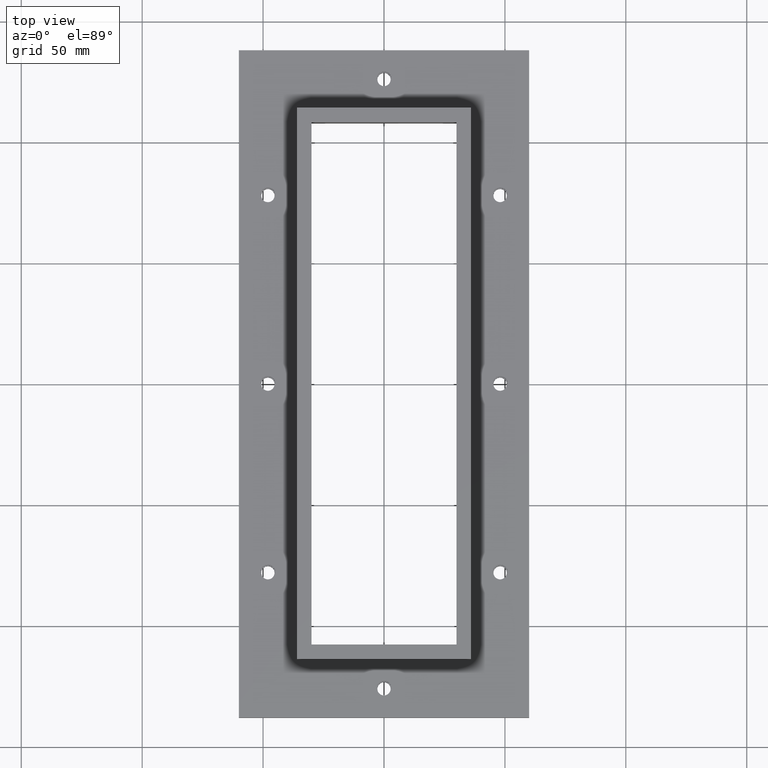
[diagram: clean part render]
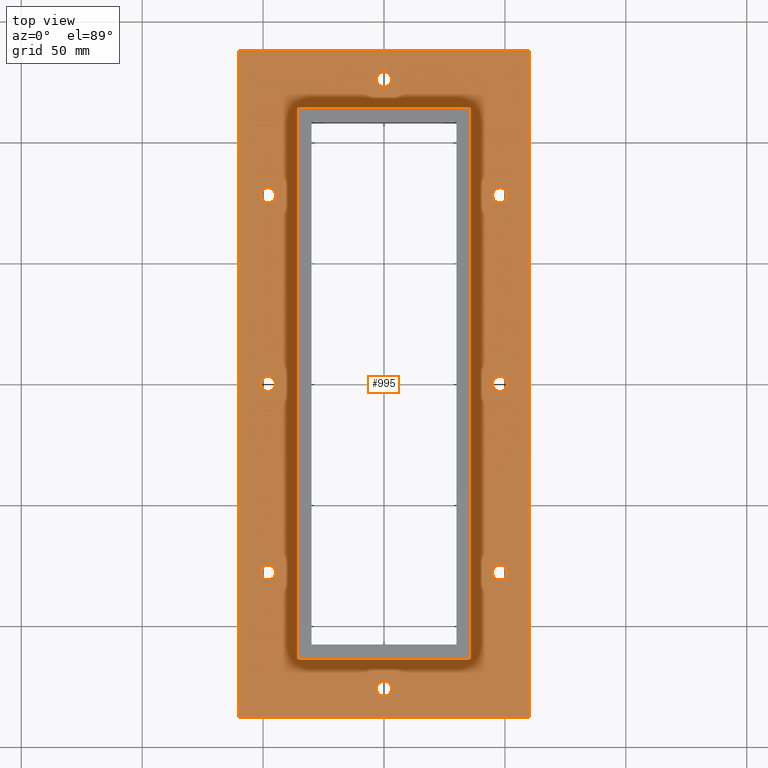
[diagram: same view with one face highlighted and labeled with its STEP entity id]
A machine part, top view. The second image highlights one B-rep face of the part: STEP entity #995.
In plain terms, the highlighted planar face has unit normal (0, 0, 1).
Its self-contained STEP definition (entity closure, byte-faithful):
#50=FACE_BOUND('',#191,.T.);
#51=FACE_BOUND('',#192,.T.);
#52=FACE_BOUND('',#193,.T.);
#53=FACE_BOUND('',#194,.T.);
#54=FACE_BOUND('',#195,.T.);
#55=FACE_BOUND('',#196,.T.);
#56=FACE_BOUND('',#197,.T.);
#57=FACE_BOUND('',#198,.T.);
#58=FACE_BOUND('',#199,.T.);
#91=PLANE('',#1082);
#129=FACE_OUTER_BOUND('',#190,.T.);
#190=EDGE_LOOP('',(#797,#798,#799,#800));
#191=EDGE_LOOP('',(#801));
#192=EDGE_LOOP('',(#802));
#193=EDGE_LOOP('',(#803));
#194=EDGE_LOOP('',(#804));
#195=EDGE_LOOP('',(#805));
#196=EDGE_LOOP('',(#806));
#197=EDGE_LOOP('',(#807));
#198=EDGE_LOOP('',(#808));
#199=EDGE_LOOP('',(#809,#810,#811,#812));
#264=LINE('',#1483,#356);
#266=LINE('',#1489,#358);
#277=LINE('',#1510,#369);
#279=LINE('',#1515,#371);
#296=LINE('',#1545,#388);
#297=LINE('',#1547,#389);
#298=LINE('',#1549,#390);
#299=LINE('',#1550,#391);
#356=VECTOR('',#1209,10.);
#358=VECTOR('',#1213,10.);
#369=VECTOR('',#1230,10.);
#371=VECTOR('',#1234,10.);
#388=VECTOR('',#1263,10.);
#389=VECTOR('',#1266,10.);
#390=VECTOR('',#1267,10.);
#391=VECTOR('',#1268,10.);
#429=CIRCLE('',#1045,3.15);
#431=CIRCLE('',#1048,3.15);
#433=CIRCLE('',#1051,3.15);
#435=CIRCLE('',#1054,3.15);
#437=CIRCLE('',#1057,3.15);
#439=CIRCLE('',#1060,3.15);
#441=CIRCLE('',#1063,3.15);
#443=CIRCLE('',#1066,3.15);
#469=VERTEX_POINT('',#1410);
#471=VERTEX_POINT('',#1416);
#473=VERTEX_POINT('',#1422);
#475=VERTEX_POINT('',#1428);
#477=VERTEX_POINT('',#1434);
#479=VERTEX_POINT('',#1440);
#481=VERTEX_POINT('',#1446);
#483=VERTEX_POINT('',#1452);
#493=VERTEX_POINT('',#1476);
#496=VERTEX_POINT('',#1481);
#498=VERTEX_POINT('',#1486);
#499=VERTEX_POINT('',#1488);
#505=VERTEX_POINT('',#1506);
#508=VERTEX_POINT('',#1513);
#515=VERTEX_POINT('',#1543);
#516=VERTEX_POINT('',#1548);
#557=EDGE_CURVE('',#469,#469,#429,.T.);
#560=EDGE_CURVE('',#471,#471,#431,.T.);
#563=EDGE_CURVE('',#473,#473,#433,.T.);
#566=EDGE_CURVE('',#475,#475,#435,.T.);
#569=EDGE_CURVE('',#477,#477,#437,.T.);
#572=EDGE_CURVE('',#479,#479,#439,.T.);
#575=EDGE_CURVE('',#481,#481,#441,.T.);
#578=EDGE_CURVE('',#483,#483,#443,.T.);
#592=EDGE_CURVE('',#493,#496,#264,.T.);
#594=EDGE_CURVE('',#498,#499,#266,.T.);
#605=EDGE_CURVE('',#505,#493,#277,.T.);
#607=EDGE_CURVE('',#508,#498,#279,.T.);
#624=EDGE_CURVE('',#515,#505,#296,.T.);
#625=EDGE_CURVE('',#515,#496,#297,.T.);
#626=EDGE_CURVE('',#499,#516,#298,.T.);
#627=EDGE_CURVE('',#516,#508,#299,.T.);
#797=ORIENTED_EDGE('',*,*,#624,.T.);
#798=ORIENTED_EDGE('',*,*,#605,.T.);
#799=ORIENTED_EDGE('',*,*,#592,.T.);
#800=ORIENTED_EDGE('',*,*,#625,.F.);
#801=ORIENTED_EDGE('',*,*,#557,.T.);
#802=ORIENTED_EDGE('',*,*,#560,.T.);
#803=ORIENTED_EDGE('',*,*,#563,.T.);
#804=ORIENTED_EDGE('',*,*,#566,.T.);
#805=ORIENTED_EDGE('',*,*,#569,.T.);
#806=ORIENTED_EDGE('',*,*,#572,.T.);
#807=ORIENTED_EDGE('',*,*,#575,.T.);
#808=ORIENTED_EDGE('',*,*,#578,.T.);
#809=ORIENTED_EDGE('',*,*,#626,.F.);
#810=ORIENTED_EDGE('',*,*,#594,.F.);
#811=ORIENTED_EDGE('',*,*,#607,.F.);
#812=ORIENTED_EDGE('',*,*,#627,.F.);
#995=ADVANCED_FACE('',(#129,#50,#51,#52,#53,#54,#55,#56,#57,#58),#91,.T.);
#1045=AXIS2_PLACEMENT_3D('',#1411,#1138,#1139);
#1048=AXIS2_PLACEMENT_3D('',#1417,#1145,#1146);
#1051=AXIS2_PLACEMENT_3D('',#1423,#1152,#1153);
#1054=AXIS2_PLACEMENT_3D('',#1429,#1159,#1160);
#1057=AXIS2_PLACEMENT_3D('',#1435,#1166,#1167);
#1060=AXIS2_PLACEMENT_3D('',#1441,#1173,#1174);
#1063=AXIS2_PLACEMENT_3D('',#1447,#1180,#1181);
#1066=AXIS2_PLACEMENT_3D('',#1453,#1187,#1188);
#1082=AXIS2_PLACEMENT_3D('',#1546,#1264,#1265);
#1138=DIRECTION('center_axis',(0.,-1.38777878078144E-16,-1.));
#1139=DIRECTION('ref_axis',(-1.,0.,0.));
#1145=DIRECTION('center_axis',(0.,-1.38777878078144E-16,-1.));
#1146=DIRECTION('ref_axis',(-1.,0.,0.));
#1152=DIRECTION('center_axis',(0.,-1.38777878078144E-16,-1.));
#1153=DIRECTION('ref_axis',(-1.,0.,0.));
#1159=DIRECTION('center_axis',(0.,-1.38777878078144E-16,-1.));
#1160=DIRECTION('ref_axis',(1.,0.,0.));
#1166=DIRECTION('center_axis',(0.,-1.38777878078144E-16,-1.));
#1167=DIRECTION('ref_axis',(1.,0.,0.));
#1173=DIRECTION('center_axis',(0.,-1.38777878078144E-16,-1.));
#1174=DIRECTION('ref_axis',(1.,0.,0.));
#1180=DIRECTION('center_axis',(0.,-1.38777878078144E-16,-1.));
#1181=DIRECTION('ref_axis',(1.,0.,0.));
#1187=DIRECTION('center_axis',(0.,-1.38777878078144E-16,-1.));
#1188=DIRECTION('ref_axis',(1.,0.,0.));
#1209=DIRECTION('',(-1.,0.,0.));
#1213=DIRECTION('',(-1.,0.,0.));
#1230=DIRECTION('',(8.05681424063374E-17,1.,0.));
#1234=DIRECTION('',(8.05681424063374E-17,1.,0.));
#1263=DIRECTION('',(1.,0.,0.));
#1264=DIRECTION('center_axis',(0.,1.38777878078144E-16,1.));
#1265=DIRECTION('ref_axis',(-0.707106781186548,-0.707106781186547,9.81307786677358E-17));
#1266=DIRECTION('',(2.05596856412066E-16,1.,0.));
#1267=DIRECTION('',(-2.07739940494109E-16,-1.,0.));
#1268=DIRECTION('',(1.,0.,0.));
#1410=CARTESIAN_POINT('',(51.15,78.,2.99999999999997));
#1411=CARTESIAN_POINT('Origin',(48.,78.,2.99999999999997));
#1416=CARTESIAN_POINT('',(51.15,-2.82131607556001E-15,3.00000000000001));
#1417=CARTESIAN_POINT('Origin',(48.,-2.43555233382859E-15,3.00000000000001));
#1422=CARTESIAN_POINT('',(51.15,-78.,3.00000000000001));
#1423=CARTESIAN_POINT('Origin',(48.,-78.,3.00000000000001));
#1428=CARTESIAN_POINT('',(-51.15,78.,2.99999999999997));
#1429=CARTESIAN_POINT('Origin',(-48.,78.,2.99999999999997));
#1434=CARTESIAN_POINT('',(-51.15,-2.82131607556001E-15,3.00000000000001));
#1435=CARTESIAN_POINT('Origin',(-48.,-2.43555233382859E-15,3.00000000000001));
#1440=CARTESIAN_POINT('',(-51.15,-78.,3.00000000000001));
#1441=CARTESIAN_POINT('Origin',(-48.,-78.,3.00000000000001));
#1446=CARTESIAN_POINT('',(-3.15000000000002,126.,2.99999999999997));
#1447=CARTESIAN_POINT('Origin',(-1.77635683940025E-14,126.,2.99999999999997));
#1452=CARTESIAN_POINT('',(-3.15000000000003,-126.,3.00000000000001));
#1453=CARTESIAN_POINT('Origin',(-2.66453525910038E-14,-126.,3.00000000000001));
#1476=CARTESIAN_POINT('',(60.,138.,3.));
#1481=CARTESIAN_POINT('',(-60.,138.,3.));
#1483=CARTESIAN_POINT('',(60.,138.,3.));
#1486=CARTESIAN_POINT('',(36.,114.,3.));
#1488=CARTESIAN_POINT('',(-36.,114.,3.));
#1489=CARTESIAN_POINT('',(36.,114.,3.));
#1506=CARTESIAN_POINT('',(59.9999999999999,-138.,3.));
#1510=CARTESIAN_POINT('',(59.9999999999999,-138.,3.));
#1513=CARTESIAN_POINT('',(36.,-114.,3.));
#1515=CARTESIAN_POINT('',(36.,-114.,3.));
#1543=CARTESIAN_POINT('',(-60.,-138.,3.));
#1545=CARTESIAN_POINT('',(-60.,-138.,3.));
#1546=CARTESIAN_POINT('Origin',(-36.,-114.,3.));
#1547=CARTESIAN_POINT('',(-60.,108.,3.));
#1548=CARTESIAN_POINT('',(-36.,-114.,3.));
#1549=CARTESIAN_POINT('',(-36.,108.,3.));
#1550=CARTESIAN_POINT('',(-36.,-114.,3.));